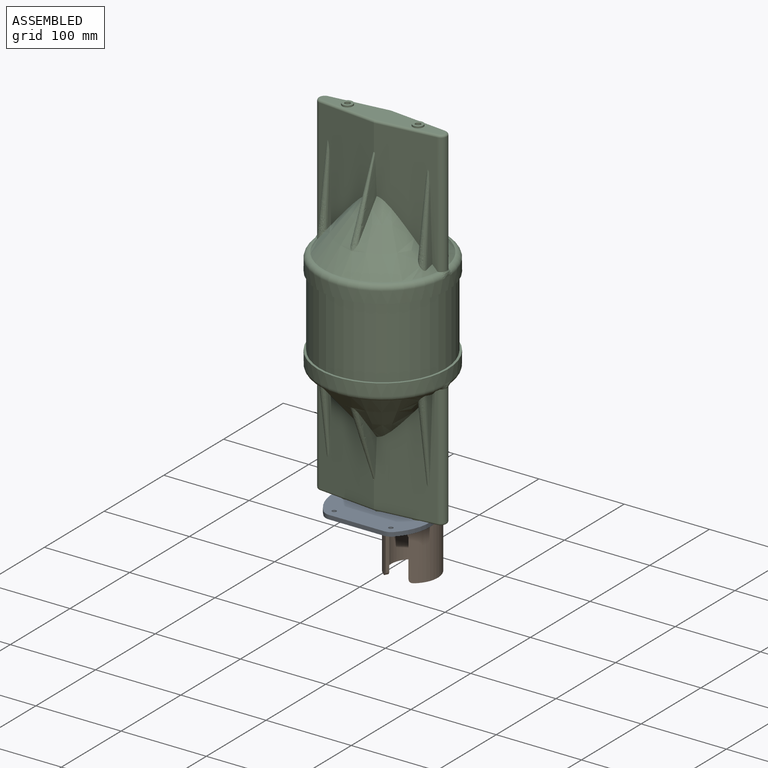
[diagram: assembled view]
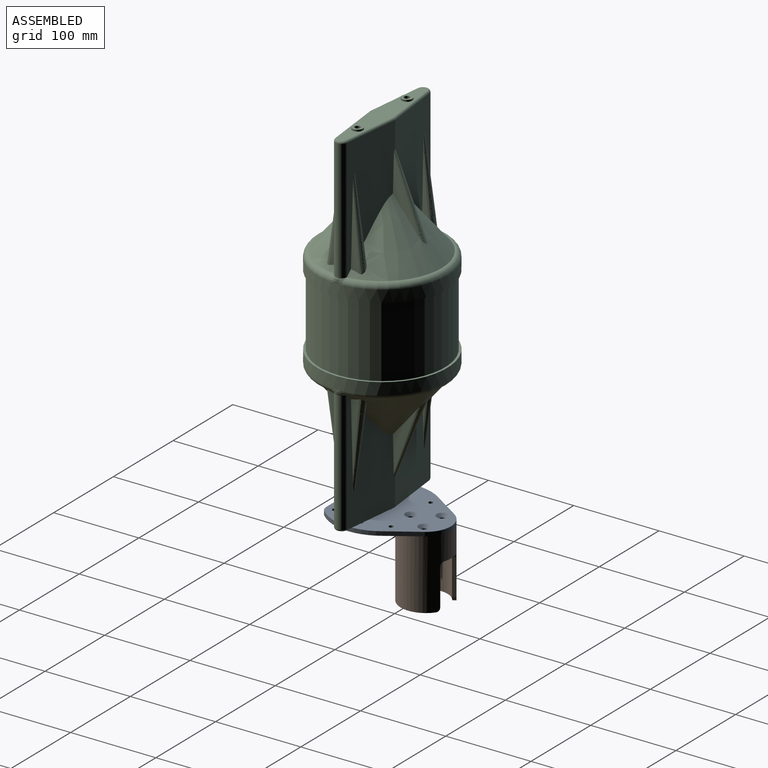
[diagram: assembled view, second angle]
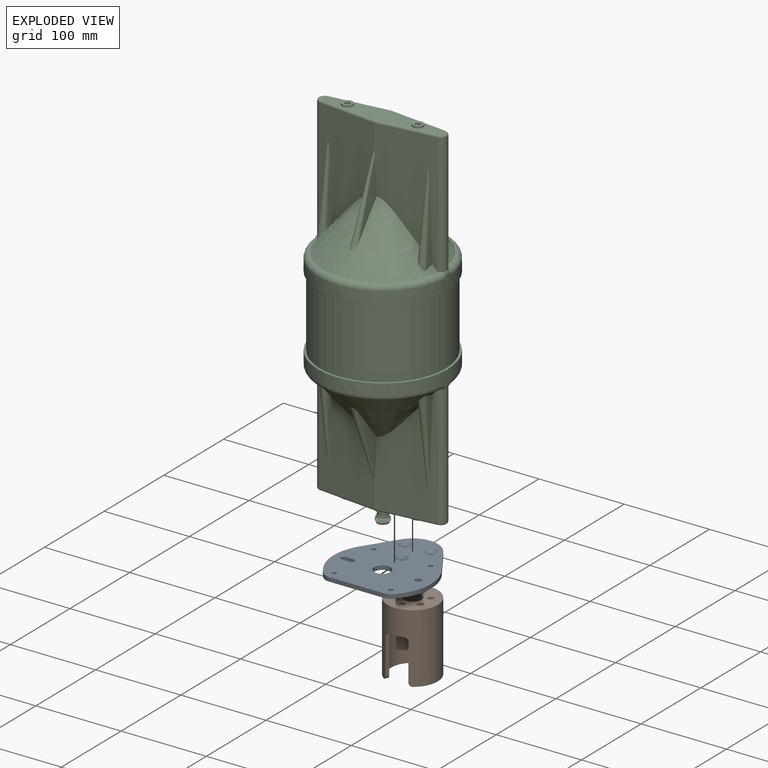
[diagram: exploded view]
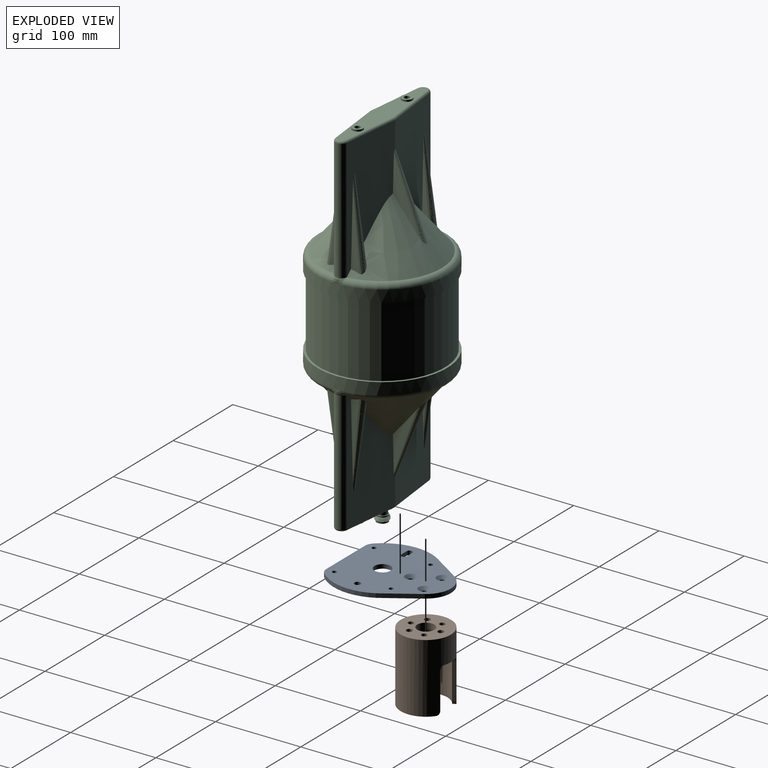
[diagram: exploded view, second angle]
ASSEMBLY  parts=3 mates=2
PART A: 26 faces, bbox 123.6x114.3x4.8 mm
  f0: cylinder r=3.3mm len=6.6mm, axis (0,0,1), area 50.1mm2, adj f1,f17,f18,f19
  f1: plane 9.43x4.83mm, normal (-1,0,0), area 45.5mm2, adj f0,f2,f18,f19
  f2: cylinder r=3.3mm len=6.6mm, axis (0,0,1), area 50.1mm2, adj f1,f17,f18,f19
  f3: plane 33.57x21.78mm, normal (-0.54,-0.84,0), area 193.1mm2, adj f4,f10,f18,f19
  f4: cylinder r=57.15mm len=72.68mm, axis (0,0,1), area 381.3mm2, adj f3,f5,f18,f19
  f5: cylinder r=12.7mm len=9.19mm, axis (0,0,1), area 49.6mm2, adj f4,f6,f18,f19
  f6: plane 64.32x4.83mm, normal (1,0,0), area 310.4mm2, adj f5,f7,f18,f19
  f7: cylinder r=12.7mm len=9.19mm, axis (0,0,1), area 49.6mm2, adj f6,f8,f18,f19
  f8: cylinder r=57.15mm len=72.68mm, axis (0,0,1), area 381.3mm2, adj f7,f9,f18,f19
  f9: plane 33.57x21.78mm, normal (-0.54,0.84,0), area 193.1mm2, adj f8,f10,f18,f19
  f10: cylinder r=29.46mm len=49.43mm, axis (0,0,1), area 283mm2, adj f3,f9,f18,f19
  f11: cylinder r=2.55mm len=5.11mm, axis (0,0,1), area 77.4mm2, adj f18,f19
  f12: cylinder r=9.53mm len=19.05mm, axis (0,0,1), area 288.8mm2, adj f18,f19
  f13: cylinder r=2.55mm len=5.11mm, axis (0,0,1), area 77.4mm2, adj f18,f19
  f14: cylinder r=2.55mm len=5.11mm, axis (0,0,1), area 77.4mm2, adj f18,f19
  f15: cylinder r=2.55mm len=5.11mm, axis (0,0,1), area 77.4mm2, adj f18,f19
  f16: cylinder r=3.62mm len=7.24mm, axis (0,0,1), area 109.8mm2, adj f18,f19
  f17: plane 9.43x4.83mm, normal (1,0,0), area 45.5mm2, adj f0,f2,f18,f19
  f18: plane 123.6x114.3mm, normal (0,0,-1), area 10227.5mm2, adj f0,f1,f2,f3,f4,f5,f6,f7
  f19: plane 123.6x114.3mm, normal (0,0,1), area 9918.9mm2, adj f0,f1,f2,f3,f4,f5,f6,f7
  f20: cylinder r=3.57mm len=7.14mm, axis (0,0,1), area 26.3mm2, adj f18,f21
  f21: cone r=3.57mm half-angle=41deg, axis (0,0,1), area 156.8mm2, adj f19,f20
  f22: cylinder r=3.57mm len=7.14mm, axis (0,0,1), area 26.3mm2, adj f18,f23
  f23: cone r=3.57mm half-angle=41deg, axis (0,0,1), area 156.8mm2, adj f19,f22
  f24: cylinder r=3.57mm len=7.14mm, axis (0,0,1), area 26.3mm2, adj f18,f25
  f25: cone r=3.57mm half-angle=41deg, axis (0,0,1), area 156.8mm2, adj f19,f24
PART B: 33 faces, bbox 58.9x58.9x81.3 mm
  f0: cylinder r=3.43mm len=6.86mm, axis (0,0,1), area 87mm2, adj f10,f32
  f1: cylinder r=3.43mm len=6.86mm, axis (0,0,1), area 87mm2, adj f10,f31
  f2: cylinder r=3.43mm len=6.86mm, axis (0,0,1), area 87mm2, adj f10,f30
  f3: cylinder r=29.46mm len=81.28mm, axis (0,0,1), area 12155.3mm2, adj f4,f9,f10,f13,f14,f15,f16,f17
  f4: plane 47.11x13.64mm, normal (0,0,-1), area 203.6mm2, adj f3,f12,f19,f21
  f5: cylinder r=3.17mm len=7.87mm, axis (0,0,1), area 157.1mm2, adj f11,f29
  f6: cylinder r=3.17mm len=7.87mm, axis (0,0,1), area 157.1mm2, adj f11,f28
  f7: cylinder r=3.17mm len=7.87mm, axis (0,0,1), area 157.1mm2, adj f11,f27
  f8: cylinder r=10.16mm len=20.32mm, axis (0,0,1), area 518.9mm2, adj f10,f11
  f9: plane 47.11x13.64mm, normal (0,0,-1), area 203.6mm2, adj f3,f12,f20,f22
  f10: plane 58.93x58.93mm, normal (0,0,1), area 2181.4mm2, adj f0,f1,f2,f3,f8,f27,f28,f29
  f11: plane 50.8x50.8mm, normal (0,0,-1), area 1147.7mm2, adj f5,f6,f7,f8,f12,f30,f31,f32
  f12: cylinder r=25.4mm len=73.15mm, axis (0,0,1), area 9181.5mm2, adj f4,f9,f11,f13,f14,f15,f16,f17
  f13: plane 41.91x3.62mm, normal (0.45,-0.89,0), area 170.3mm2, adj f3,f12,f20,f24
  f14: plane 41.91x3.62mm, normal (0.45,0.89,0), area 170.3mm2, adj f3,f12,f19,f23
  f15: plane 17.3x4.98mm, normal (0,0,-1), area 63.5mm2, adj f3,f12,f23,f24
  f16: plane 41.91x3.62mm, normal (-0.45,-0.89,0), area 170.3mm2, adj f3,f12,f22,f26
  f17: plane 41.91x3.62mm, normal (-0.45,0.89,0), area 170.3mm2, adj f3,f12,f21,f25
  f18: plane 17.3x4.98mm, normal (0,0,-1), area 63.5mm2, adj f3,f12,f25,f26
  f19: bspline ~6.6x6.38mm, area 33.8mm2, adj f3,f4,f12,f14
  f20: bspline ~6.6x6.38mm, area 33.8mm2, adj f3,f9,f12,f13
  f21: bspline ~6.6x6.38mm, area 33.8mm2, adj f3,f4,f12,f17
  f22: bspline ~6.6x6.38mm, area 33.8mm2, adj f3,f9,f12,f16
  f23: bspline ~6.81x6.79mm, area 33.8mm2, adj f3,f12,f14,f15
  f24: bspline ~6.81x6.79mm, area 33.8mm2, adj f3,f12,f13,f15
  f25: bspline ~6.81x6.79mm, area 33.8mm2, adj f3,f12,f17,f18
  f26: bspline ~6.81x6.79mm, area 33.8mm2, adj f3,f12,f16,f18
  f27: cone r=3.43mm half-angle=45deg, axis (0,0,1), area 7.5mm2, adj f7,f10
  f28: cone r=3.43mm half-angle=45deg, axis (0,0,1), area 7.5mm2, adj f6,f10
  f29: cone r=3.43mm half-angle=45deg, axis (0,0,1), area 7.5mm2, adj f5,f10
  f30: cone r=6.99mm half-angle=41deg, axis (0,0,-1), area 177.3mm2, adj f2,f11
  f31: cone r=6.99mm half-angle=41deg, axis (0,0,-1), area 177.3mm2, adj f1,f11
  f32: cone r=6.99mm half-angle=41deg, axis (0,0,-1), area 177.3mm2, adj f0,f11
PART C: 127 faces, bbox 178x178.9x447.3 mm
  f0: plane 138.95x62.63mm, normal (0,0,1), area 9mm2, adj f1,f4,f20,f23
  f1: cylinder r=7.32mm len=142.24mm, axis (0,0,1), area 3038.5mm2, adj f0,f2,f6,f19,f20,f21,f22,f46
  f2: plane 143x70.3mm, normal (0.11,0.99,0), area 6474.9mm2, adj f1,f3,f21,f28,f29,f31,f32,f33
  f3: plane 143x70.3mm, normal (-0.11,0.99,0), area 6474.9mm2, adj f2,f4,f21,f27,f28,f37,f38,f39
  f4: cylinder r=7.32mm len=142.24mm, axis (0,0,1), area 3038.5mm2, adj f0,f3,f5,f19,f20,f21,f25,f47
  f5: plane 151.66x78.95mm, normal (-0.11,-0.99,0), area 6471.6mm2, adj f4,f6,f20,f30,f40,f41,f42,f45
  f6: plane 151.66x78.95mm, normal (0.11,-0.99,0), area 6468.1mm2, adj f1,f5,f20,f30,f34,f35,f36,f44
  f7: plane 145.59x24.85mm, normal (0,0,1), area 2173.7mm2, adj f9,f11,f44,f45,f46,f47,f48,f49
  f8: plane 12.45x12.45mm, normal (0,0,1), area 84.7mm2, adj f9,f16
  f9: cylinder r=6.22mm len=12.45mm, axis (0,0,-1), area 78.2mm2, adj f7,f8
  f10: plane 12.45x12.45mm, normal (0,0,1), area 84.7mm2, adj f11,f13
  f11: cylinder r=6.22mm len=12.45mm, axis (0,0,-1), area 78.2mm2, adj f7,f10
  f12: cylinder r=3.17mm len=12.45mm, axis (0,0,1), area 248.3mm2, adj f13,f14
  f13: cone r=3.17mm half-angle=45deg, axis (0,0,1), area 7.5mm2, adj f10,f12
  f14: cone r=0mm half-angle=59deg, axis (0,0,1), area 36.9mm2, adj f12
  f15: cylinder r=3.17mm len=12.45mm, axis (0,0,1), area 248.3mm2, adj f16,f17
  f16: cone r=3.17mm half-angle=45deg, axis (0,0,1), area 7.5mm2, adj f8,f15
  f17: cone r=0mm half-angle=59deg, axis (0,0,1), area 36.9mm2, adj f15
  f18: cylinder r=76.2mm len=152.4mm, axis (0,0,-1), area 6713.2mm2, adj f22,f23,f24,f25,f26
  f19: plane 138.97x62.72mm, normal (0,0,1), area 9mm2, adj f1,f4,f21,f24
  f20: cone r=76.2mm half-angle=40deg, axis (0,0,-1), area 8715.1mm2, adj f0,f1,f4,f5,f6,f30,f34,f35
  f21: cone r=76.2mm half-angle=40deg, axis (0,0,-1), area 8693.9mm2, adj f1,f2,f3,f4,f19,f27,f28,f29
  f22: bspline ~15.65x6.72mm, area 93.7mm2, adj f1,f18,f23,f24
  f23: torus R=69.85mm, axis (0,0,-1), area 2162.8mm2, adj f0,f18,f22,f25
  f24: torus R=69.85mm, axis (0,0,-1), area 2164.9mm2, adj f18,f19,f22,f25
  f25: bspline ~15.65x6.72mm, area 93.7mm2, adj f4,f18,f23,f24
  f26: plane 152.4x152.4mm, normal (0,0,-1), area 1195.8mm2, adj f18,f43
  f27: plane 76.86x29.5mm, normal (-1,0,0.03), area 619.4mm2, adj f3,f21,f28
  f28: bspline ~139.7x79.7mm, area 867.1mm2, adj f2,f3,f21,f27,f29
  f29: plane 76.86x29.5mm, normal (1,0,0.03), area 619.4mm2, adj f2,f21,f28
  f30: bspline ~139.7x61.53mm, area 1768.8mm2, adj f5,f6,f20
  f31: plane 70.93x8.08mm, normal (-1,0,0.03), area 254.9mm2, adj f2,f21,f32
  f32: bspline ~139.7x47.25mm, area 989.3mm2, adj f2,f21,f31,f33
  f33: plane 87.78x10.43mm, normal (1,0,0.03), area 415.1mm2, adj f2,f21,f32
  f34: plane 87.1x10.33mm, normal (1,0,0.03), area 408.5mm2, adj f6,f20,f36
  f35: plane 70.35x8.01mm, normal (-1,0,0.03), area 250.9mm2, adj f6,f20,f36
  f36: bspline ~139.7x47.25mm, area 986.9mm2, adj f6,f20,f34,f35
  f37: plane 87.78x10.43mm, normal (-1,0,0.03), area 415.1mm2, adj f3,f21,f38
  f38: bspline ~139.7x47.25mm, area 990.2mm2, adj f3,f21,f37,f39
  f39: plane 70.93x8.08mm, normal (1,0,0.03), area 254.9mm2, adj f3,f21,f38
  f40: bspline ~139.7x47.25mm, area 986mm2, adj f5,f20,f41,f42
  f41: plane 70.36x8.01mm, normal (1,0,0.03), area 250.9mm2, adj f5,f20,f40
  f42: plane 87.11x10.35mm, normal (-1,0,0.03), area 408.5mm2, adj f5,f20,f40
  f43: cylinder r=73.66mm len=147.32mm, axis (0,0,1), area 38793.5mm2, adj f26,f104
  f44: cylinder r=2.54mm len=69.11mm, axis (0.99,0.11,0), area 275.7mm2, adj f6,f7,f45,f46
  f45: cylinder r=2.54mm len=69.11mm, axis (0.99,-0.11,0), area 275.7mm2, adj f5,f7,f44,f47
  f46: torus R=4.78mm, axis (0,0,1), area 74.5mm2, adj f1,f7,f44,f48
  f47: torus R=4.78mm, axis (0,0,1), area 74.5mm2, adj f4,f7,f45,f49
  f48: cylinder r=2.54mm len=69.12mm, axis (-0.99,0.11,0), area 275.8mm2, adj f2,f7,f46,f49
  f49: cylinder r=2.54mm len=69.12mm, axis (-0.99,-0.11,0), area 275.8mm2, adj f3,f7,f47,f48
  f50: plane 138.95x62.63mm, normal (0,0,-1), area 9mm2, adj f51,f54,f98,f101
  f51: cylinder r=7.32mm len=142.24mm, axis (0,0,-1), area 3038.5mm2, adj f50,f52,f56,f97,f98,f99,f100,f123
  f52: plane 143x70.3mm, normal (0.11,0.99,0), area 6474.9mm2, adj f51,f53,f99,f106,f107,f109,f110,f111
  f53: plane 143x70.3mm, normal (-0.11,0.99,0), area 6474.9mm2, adj f52,f54,f99,f105,f106,f115,f116,f117
  f54: cylinder r=7.32mm len=142.24mm, axis (0,0,-1), area 3038.5mm2, adj f50,f53,f55,f97,f98,f99,f103,f124
  f55: plane 144.48x71.77mm, normal (-0.11,-0.99,0), area 6471.6mm2, adj f54,f56,f98,f108,f118,f119,f120,f122
  f56: plane 155.44x82.73mm, normal (0.11,-0.99,0), area 6468.1mm2, adj f51,f55,f98,f108,f112,f113,f114,f121
  f57: cylinder r=5.65mm len=11.3mm, axis (0,0,1), area 248.5mm2, adj f69,f72
  f58: cylinder r=6.65mm len=13.3mm, axis (0,0,1), area 56.1mm2, adj f59,f71
  f59: plane 13.3x13.3mm, normal (0,0,1), area 31.4mm2, adj f58,f69
  f60: cylinder r=7.88mm len=15.75mm, axis (0,0,1), area 16.8mm2, adj f63,f64,f66,f68
  f61: cylinder r=6.6mm len=13.2mm, axis (0,0,1), area 53.9mm2, adj f62,f70
  f62: plane 13.2x13.2mm, normal (0,0,-1), area 64.9mm2, adj f61,f75
  f63: cone r=6.62mm half-angle=45deg, axis (0,0,1), area 54.2mm2, adj f60,f66,f67,f68,f70
  f64: cone r=7.88mm half-angle=45deg, axis (0,0,-1), area 5.4mm2, adj f60,f65,f66,f68
  f65: cone r=7.88mm half-angle=45deg, axis (0,0,-1), area 46.7mm2, adj f64,f66,f67,f71
  f66: bspline ~15.74x15.72mm, area 117.5mm2, adj f60,f63,f64,f65,f67
  f67: bspline ~14.23x14.21mm, area 36.5mm2, adj f63,f65,f66,f68
  f68: bspline ~15.88x15.88mm, area 117.3mm2, adj f60,f63,f64,f67
  f69: torus R=5.85mm, axis (0,0,-1), area 11.3mm2, adj f57,f59
  f70: torus R=6.53mm, axis (0,0,-1), area 3.5mm2, adj f61,f63
  f71: torus R=6.85mm, axis (0,0,1), area 6.6mm2, adj f58,f65
  f72: torus R=5.85mm, axis (0,0,1), area 11.3mm2, adj f57,f78
  f73: cone r=4.3mm half-angle=1.5deg, axis (0,0,-1), area 223.4mm2, adj f74,f75
  f74: plane 8.13x8.13mm, normal (0,0,-1), area 13.4mm2, adj f73,f76
  f75: torus R=4.79mm, axis (0,0,-1), area 21.7mm2, adj f62,f73
  f76: cylinder r=3.5mm len=7mm, axis (0,0,-1), area 140.7mm2, adj f74,f77
  f77: plane 7x7mm, normal (0,0,-1), area 38.5mm2, adj f76
  f78: plane 22x19.05mm, normal (0,0,-1), area 206.8mm2, adj f72,f79,f80,f81,f82,f83,f84
  f79: plane 9.53x5.5mm, normal (0.5,0.87,0), area 22mm2, adj f78,f80,f84,f85
  f80: plane 9.53x5.5mm, normal (-0.5,0.87,0), area 22mm2, adj f78,f79,f81,f85
  f81: plane 11x2mm, normal (-1,0,0), area 22mm2, adj f78,f80,f82,f85
  f82: plane 9.53x5.5mm, normal (-0.5,-0.87,0), area 22mm2, adj f78,f81,f83,f85
  f83: plane 9.53x5.5mm, normal (0.5,-0.87,0), area 22mm2, adj f78,f82,f84,f85
  f84: plane 11x2mm, normal (1,0,0), area 22mm2, adj f78,f79,f83,f85
  f85: plane 145.59x24.85mm, normal (0,0,-1), area 1859.4mm2, adj f79,f80,f81,f82,f83,f84,f87,f89
  f86: plane 12.45x12.45mm, normal (0,0,-1), area 84.7mm2, adj f87,f94
  f87: cylinder r=6.22mm len=12.45mm, axis (0,0,1), area 78.2mm2, adj f85,f86
  f88: plane 12.45x12.45mm, normal (0,0,-1), area 84.7mm2, adj f89,f91
  f89: cylinder r=6.22mm len=12.45mm, axis (0,0,1), area 78.2mm2, adj f85,f88
  f90: cylinder r=3.17mm len=12.45mm, axis (0,0,-1), area 248.3mm2, adj f91,f92
  f91: cone r=3.17mm half-angle=45deg, axis (0,0,-1), area 7.5mm2, adj f88,f90
  f92: cone r=0mm half-angle=59deg, axis (0,0,-1), area 36.9mm2, adj f90
  f93: cylinder r=3.17mm len=12.45mm, axis (0,0,-1), area 248.3mm2, adj f94,f95
  f94: cone r=3.17mm half-angle=45deg, axis (0,0,-1), area 7.5mm2, adj f86,f93
  f95: cone r=0mm half-angle=59deg, axis (0,0,-1), area 36.9mm2, adj f93
  f96: cylinder r=76.2mm len=152.4mm, axis (0,0,1), area 6713.2mm2, adj f100,f101,f102,f103,f104
  f97: plane 138.97x62.72mm, normal (0,0,-1), area 9mm2, adj f51,f54,f99,f102
  f98: cone r=76.2mm half-angle=40deg, axis (0,0,1), area 8718.8mm2, adj f50,f51,f54,f55,f56,f108,f112,f113
  f99: cone r=76.2mm half-angle=40deg, axis (0,0,1), area 8694.2mm2, adj f51,f52,f53,f54,f97,f105,f106,f107
  f100: bspline ~15.65x6.72mm, area 93.7mm2, adj f51,f96,f101,f102
  f101: torus R=69.85mm, axis (0,0,1), area 2162.8mm2, adj f50,f96,f100,f103
  f102: torus R=69.85mm, axis (0,0,1), area 2164.9mm2, adj f96,f97,f100,f103
  f103: bspline ~15.65x6.72mm, area 93.7mm2, adj f54,f96,f101,f102
  f104: plane 152.4x152.4mm, normal (0,0,1), area 1195.8mm2, adj f43,f96
  f105: plane 76.86x29.5mm, normal (-1,0,-0.03), area 619.4mm2, adj f53,f99,f106
  f106: bspline ~139.7x79.7mm, area 867.1mm2, adj f52,f53,f99,f105,f107
  f107: plane 76.86x29.5mm, normal (1,0,-0.03), area 619.4mm2, adj f52,f99,f106
  f108: bspline ~139.7x61.53mm, area 1852.6mm2, adj f55,f56,f98
  f109: plane 70.93x8.08mm, normal (-1,0,-0.03), area 254.9mm2, adj f52,f99,f110
  f110: bspline ~139.7x47.25mm, area 989.3mm2, adj f52,f99,f109,f111
  f111: plane 87.78x10.43mm, normal (1,0,-0.03), area 415.1mm2, adj f52,f99,f110
  f112: plane 87.1x10.33mm, normal (1,0,-0.03), area 408.5mm2, adj f56,f98,f114
  f113: plane 70.35x8.01mm, normal (-1,0,-0.03), area 250.9mm2, adj f56,f98,f114
  f114: bspline ~139.7x47.25mm, area 986.9mm2, adj f56,f98,f112,f113
  f115: plane 87.78x10.43mm, normal (-1,0,-0.03), area 415.1mm2, adj f53,f99,f116
  f116: bspline ~139.7x47.25mm, area 990.2mm2, adj f53,f99,f115,f117
  f117: plane 70.93x8.08mm, normal (1,0,-0.03), area 254.9mm2, adj f53,f99,f116
  f118: bspline ~139.7x47.25mm, area 986mm2, adj f55,f98,f119,f120
  f119: plane 70.36x8.01mm, normal (1,0,-0.03), area 250.9mm2, adj f55,f98,f118
  f120: plane 87.11x10.35mm, normal (-1,0,-0.03), area 408.5mm2, adj f55,f98,f118
  f121: cylinder r=2.54mm len=69.11mm, axis (0.99,0.11,0), area 275.7mm2, adj f56,f85,f122,f123
  f122: cylinder r=2.54mm len=69.11mm, axis (0.99,-0.11,0), area 275.7mm2, adj f55,f85,f121,f124
  f123: torus R=4.78mm, axis (0,0,-1), area 74.5mm2, adj f51,f85,f121,f125
  f124: torus R=4.78mm, axis (0,0,-1), area 74.5mm2, adj f54,f85,f122,f126
  f125: cylinder r=2.54mm len=69.12mm, axis (-0.99,0.11,0), area 275.8mm2, adj f52,f85,f123,f126
  f126: cylinder r=2.54mm len=69.12mm, axis (-0.99,-0.11,0), area 275.8mm2, adj f53,f85,f124,f125
PLACE A rot(axis=(0,0,-1),90deg) t=(-34.72,122.98,-26.77)mm
PLACE B rot(axis=(0,0,-1),90deg) t=(-34.72,152.44,-31.59)mm
PLACE C t=(-34.2,101.69,389.25)mm
MATE fastened B.f29 <-> A.f22  axis (0,0,1) through (-34.72,134.91,-31.59)mm
MATE fastened A.f16 <-> C.f15  axis (0,0,1) through (7.19,101.69,-26.77)mm
